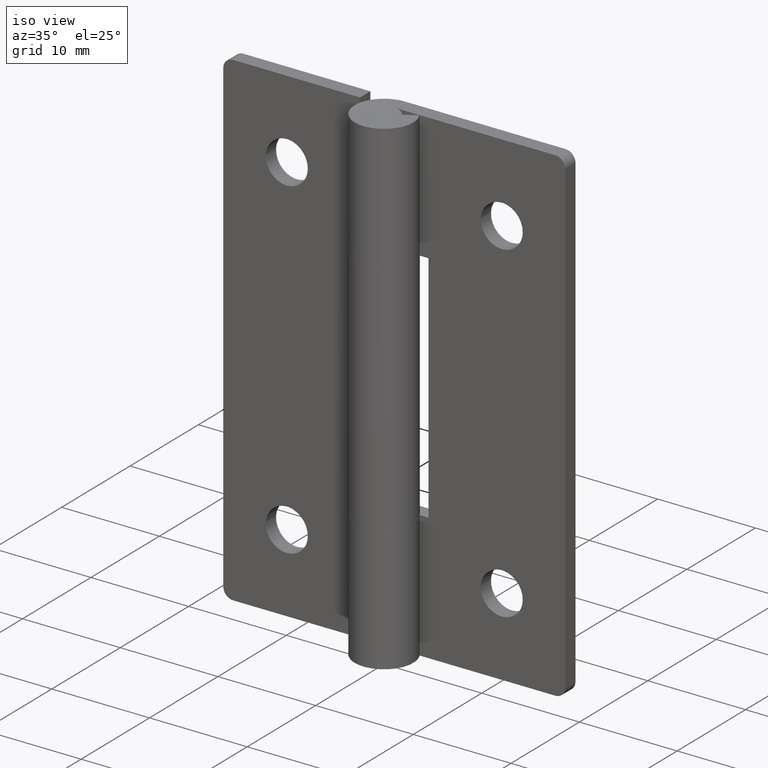
[diagram: clean part render]
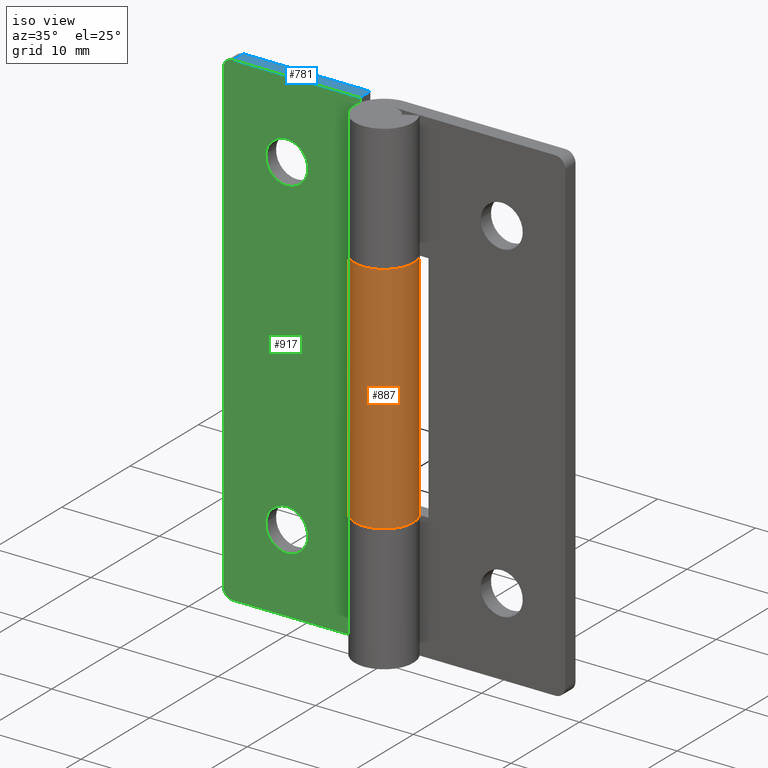
[diagram: same view with three faces highlighted in distinct colors, each labeled with its STEP entity id]
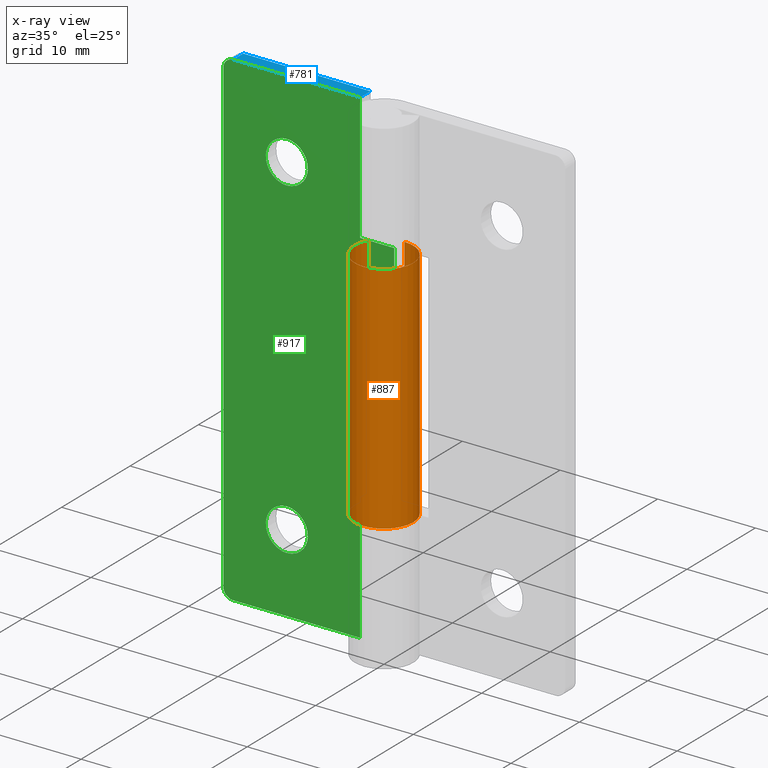
[diagram: x-ray of the same camera — body ghosted, the three highlighted faces saturated]
A machine part, iso view with three faces highlighted in distinct colors.
The next image is the same camera in x-ray (body ghosted, the three faces saturated) — at least one of them is partly hidden behind the body in this view.
Their STEP definitions:

[orange] entity #887 — the highlighted face is a freeform B-spline surface patch.
#535=CARTESIAN_POINT('',(-2.626309197333780,1.450000000000000,13.0));
#536=VERTEX_POINT('',#535);
#537=CARTESIAN_POINT('',(0.0,3.0,13.0));
#538=VERTEX_POINT('',#537);
#539=CARTESIAN_POINT('',(-2.626309197333780,1.450000000000000,13.0));
#540=CARTESIAN_POINT('',(-3.733431584505770,-0.555272902071675,12.999999999999998));
#541=CARTESIAN_POINT('',(-2.090650590886091,-2.151552952364324,13.0));
#542=CARTESIAN_POINT('',(-0.447869597266413,-3.747833002656972,12.999999999999998));
#543=CARTESIAN_POINT('',(1.524795068197689,-2.583602136552764,13.0));
#544=CARTESIAN_POINT('',(3.497459733661792,-1.419371270448555,12.999999999999998));
#545=CARTESIAN_POINT('',(2.894028888043301,0.790314364775722,13.0));
#546=CARTESIAN_POINT('',(2.290598042424809,3.000000000000000,12.999999999999998));
#547=CARTESIAN_POINT('',(0.0,3.0,13.0));
#555=(BOUNDED_CURVE()B_SPLINE_CURVE(2,(#539,#540,#541,#542,#543,#544,#545,#546,#547),.UNSPECIFIED.,.F.,.U.)B_SPLINE_CURVE_WITH_KNOTS((3,2,2,2,3),(0.0,0.250000000000000,0.500000000000000,0.750000000000000,1.0),.UNSPECIFIED.)CURVE()GEOMETRIC_REPRESENTATION_ITEM()RATIONAL_B_SPLINE_CURVE((1.0,0.794807562115481,1.0,0.794807562115481,1.0,0.794807562115481,1.0,0.794807562115481,1.0))REPRESENTATION_ITEM(''));
#556=EDGE_CURVE('',#536,#538,#555,.T.);
#643=CARTESIAN_POINT('',(0.0,3.0,37.000008000000001));
#644=VERTEX_POINT('',#643);
#685=CARTESIAN_POINT('',(-2.626309197333780,1.450000000000000,37.000008000000051));
#686=VERTEX_POINT('',#685);
#692=CARTESIAN_POINT('',(0.0,3.0,37.000008000000051));
#693=CARTESIAN_POINT('',(2.290598042424808,3.0,37.000008000000044));
#694=CARTESIAN_POINT('',(2.894028888043301,0.790314364775724,37.000008000000051));
#695=CARTESIAN_POINT('',(3.497459733661794,-1.419371270448550,37.000008000000044));
#696=CARTESIAN_POINT('',(1.524795068197693,-2.583602136552761,37.000008000000051));
#697=CARTESIAN_POINT('',(-0.447869597266408,-3.747833002656974,37.000008000000044));
#698=CARTESIAN_POINT('',(-2.090650590886088,-2.151552952364328,37.000008000000051));
#699=CARTESIAN_POINT('',(-3.733431584505768,-0.555272902071681,37.000008000000044));
#700=CARTESIAN_POINT('',(-2.626309197333781,1.449999999999996,37.000008000000051));
#708=(BOUNDED_CURVE()B_SPLINE_CURVE(2,(#692,#693,#694,#695,#696,#697,#698,#699,#700),.UNSPECIFIED.,.F.,.U.)B_SPLINE_CURVE_WITH_KNOTS((3,2,2,2,3),(0.0,0.250000000000000,0.500000000000000,0.750000000000000,1.0),.UNSPECIFIED.)CURVE()GEOMETRIC_REPRESENTATION_ITEM()RATIONAL_B_SPLINE_CURVE((1.0,0.794807562115481,1.0,0.794807562115481,1.0,0.794807562115481,1.0,0.794807562115481,1.0))REPRESENTATION_ITEM(''));
#709=EDGE_CURVE('',#644,#686,#708,.T.);
#846=CARTESIAN_POINT('',(-2.626309197333780,1.450000000000000,37.000008000000051));
#847=CARTESIAN_POINT('',(-2.626309197333780,1.450000000000000,13.0));
#848=QUASI_UNIFORM_CURVE('',1,(#846,#847),.UNSPECIFIED.,.F.,.U.);
#849=EDGE_CURVE('',#686,#536,#848,.T.);
#855=CARTESIAN_POINT('',(-2.584887481324576,1.522615088882112,37.600008200000062));
#856=CARTESIAN_POINT('',(-2.584887481324576,1.522615088882112,12.384999795000001));
#857=CARTESIAN_POINT('',(-4.454017153952614,-1.650537421576552,37.600008200000048));
#858=CARTESIAN_POINT('',(-4.454017153952614,-1.650537421576552,12.384999794999995));
#859=CARTESIAN_POINT('',(-0.968449136630486,-2.839384840024272,37.600008200000062));
#860=CARTESIAN_POINT('',(-0.968449136630486,-2.839384840024272,12.384999795000001));
#861=CARTESIAN_POINT('',(2.517118880691642,-4.028232258471992,37.600008200000048));
#862=CARTESIAN_POINT('',(2.517118880691642,-4.028232258471992,12.384999794999995));
#863=CARTESIAN_POINT('',(2.976562347997527,-0.374268070349911,37.600008200000062));
#864=CARTESIAN_POINT('',(2.976562347997527,-0.374268070349911,12.384999795000001));
#865=CARTESIAN_POINT('',(3.436005815303412,3.279696117772171,37.600008200000048));
#866=CARTESIAN_POINT('',(3.436005815303412,3.279696117772171,12.384999794999995));
#867=CARTESIAN_POINT('',(-0.235377287183536,2.990752001199384,37.600008200000062));
#868=CARTESIAN_POINT('',(-0.235377287183536,2.990752001199384,12.384999795000001));
#876=(BOUNDED_SURFACE()B_SPLINE_SURFACE(1,2,((#855,#857,#859,#861,#863,#865,#867),(#856,#858,#860,#862,#864,#866,#868)),.UNSPECIFIED.,.F.,.F.,.U.)B_SPLINE_SURFACE_WITH_KNOTS((2,2),(3,2,2,3),(0.0,25.215008405000059),(0.0,5.702297214197750,11.404594428395500,17.106891642593251),.UNSPECIFIED.)GEOMETRIC_REPRESENTATION_ITEM()RATIONAL_B_SPLINE_SURFACE(((1.0,0.631578351302498,1.0,0.631578351302498,1.0,0.631578351302498,1.0),(1.0,0.631578351302498,1.0,0.631578351302498,1.0,0.631578351302498,1.0)))REPRESENTATION_ITEM('')SURFACE());
#877=ORIENTED_EDGE('',*,*,#556,.T.);
#878=CARTESIAN_POINT('',(0.0,3.0,37.000008000000001));
#879=CARTESIAN_POINT('',(0.0,3.0,13.0));
#880=QUASI_UNIFORM_CURVE('',1,(#878,#879),.UNSPECIFIED.,.F.,.U.);
#881=EDGE_CURVE('',#644,#538,#880,.T.);
#882=ORIENTED_EDGE('',*,*,#881,.F.);
#883=ORIENTED_EDGE('',*,*,#709,.T.);
#884=ORIENTED_EDGE('',*,*,#849,.T.);
#885=EDGE_LOOP('',(#877,#882,#883,#884));
#886=FACE_OUTER_BOUND('',#885,.T.);
#887=ADVANCED_FACE('',(#886),#876,.T.);

[blue] entity #781 — the highlighted face is a freeform B-spline surface patch.
#422=CARTESIAN_POINT('',(-16.500000000000000,1.500000000000000,50.000008000000001));
#423=VERTEX_POINT('',#422);
#439=CARTESIAN_POINT('',(-16.500000000000000,3.0,50.000008000000001));
#440=VERTEX_POINT('',#439);
#441=CARTESIAN_POINT('',(-16.500000000000000,3.0,50.000008000000001));
#442=CARTESIAN_POINT('',(-16.500000000000000,1.500000000000000,50.000008000000001));
#443=QUASI_UNIFORM_CURVE('',1,(#441,#442),.UNSPECIFIED.,.F.,.U.);
#444=EDGE_CURVE('',#440,#423,#443,.T.);
#720=CARTESIAN_POINT('',(-3.500000000000000,3.0,50.000008000000001));
#721=VERTEX_POINT('',#720);
#727=CARTESIAN_POINT('',(-3.500000000000000,1.499999999999946,50.000008000000001));
#728=VERTEX_POINT('',#727);
#729=CARTESIAN_POINT('',(-3.500000000000000,1.499999999999946,50.000008000000001));
#730=CARTESIAN_POINT('',(-3.500000000000000,3.0,50.000008000000001));
#731=QUASI_UNIFORM_CURVE('',1,(#729,#730),.UNSPECIFIED.,.F.,.U.);
#732=EDGE_CURVE('',#728,#721,#731,.T.);
#762=CARTESIAN_POINT('',(-17.149349974803481,1.425075002907234,50.000008000000001));
#763=CARTESIAN_POINT('',(-2.850649676509351,1.425075002907234,50.000008000000001));
#764=CARTESIAN_POINT('',(-17.149349974803481,3.074925037325847,50.000008000000001));
#765=CARTESIAN_POINT('',(-2.850649676509351,3.074925037325847,50.000008000000001));
#766=B_SPLINE_SURFACE_WITH_KNOTS('',1,1,((#762,#764),(#763,#765)),.UNSPECIFIED.,.F.,.F.,.U.,(2,2),(2,2),(0.0,14.298700298294129),(0.041708334948495,0.958291687403247),.UNSPECIFIED.);
#767=CARTESIAN_POINT('',(-16.500000000000000,3.0,50.000008000000001));
#768=CARTESIAN_POINT('',(-3.500000000000000,3.0,50.000008000000001));
#769=QUASI_UNIFORM_CURVE('',1,(#767,#768),.UNSPECIFIED.,.F.,.U.);
#770=EDGE_CURVE('',#440,#721,#769,.T.);
#771=ORIENTED_EDGE('',*,*,#770,.F.);
#772=ORIENTED_EDGE('',*,*,#444,.T.);
#773=CARTESIAN_POINT('',(-3.500000000000000,1.499999999999946,50.000008000000001));
#774=CARTESIAN_POINT('',(-16.500000000000000,1.500000000000000,50.000008000000001));
#775=QUASI_UNIFORM_CURVE('',1,(#773,#774),.UNSPECIFIED.,.F.,.U.);
#776=EDGE_CURVE('',#728,#423,#775,.T.);
#777=ORIENTED_EDGE('',*,*,#776,.F.);
#778=ORIENTED_EDGE('',*,*,#732,.T.);
#779=EDGE_LOOP('',(#771,#772,#777,#778));
#780=FACE_OUTER_BOUND('',#779,.T.);
#781=ADVANCED_FACE('',(#780),#766,.T.);

[green] entity #917 — the highlighted face is a freeform B-spline surface patch.
#62=CARTESIAN_POINT('',(-11.0,1.499999999999946,44.150008000000000));
#63=VERTEX_POINT('',#62);
#64=CARTESIAN_POINT('',(-13.143372267519061,1.499999999999946,42.168695055905957));
#65=VERTEX_POINT('',#64);
#66=CARTESIAN_POINT('',(-11.0,1.499999999999946,44.150008000000000));
#67=CARTESIAN_POINT('',(-12.987439556895691,1.499999999999946,44.150008000000000));
#68=CARTESIAN_POINT('',(-13.143372267519057,1.499999999999946,42.168695055905964));
#76=(BOUNDED_CURVE()B_SPLINE_CURVE(2,(#66,#67,#68),.UNSPECIFIED.,.F.,.U.)B_SPLINE_CURVE_WITH_KNOTS((3,3),(0.0,0.236331300618196),.UNSPECIFIED.)CURVE()GEOMETRIC_REPRESENTATION_ITEM()RATIONAL_B_SPLINE_CURVE((1.0,0.723120658622267,0.969723356141407))REPRESENTATION_ITEM(''));
#77=EDGE_CURVE('',#63,#65,#76,.T.);
#118=CARTESIAN_POINT('',(-8.856627732480945,1.499999999999946,41.831320944094053));
#119=VERTEX_POINT('',#118);
#125=CARTESIAN_POINT('',(-8.856627732480945,1.499999999999946,41.831320944094053));
#126=CARTESIAN_POINT('',(-8.850000000000000,1.499999999999946,41.915534269841999));
#127=CARTESIAN_POINT('',(-8.850000000000000,1.499999999999946,42.000008000000001));
#128=CARTESIAN_POINT('',(-8.850000000000000,1.499999999999946,44.150008000000000));
#129=CARTESIAN_POINT('',(-11.0,1.499999999999946,44.150008000000000));
#137=(BOUNDED_CURVE()B_SPLINE_CURVE(2,(#125,#126,#127,#128,#129),.UNSPECIFIED.,.F.,.U.)B_SPLINE_CURVE_WITH_KNOTS((3,2,3),(0.736331300618196,0.750000000000000,1.0),.UNSPECIFIED.)CURVE()GEOMETRIC_REPRESENTATION_ITEM()RATIONAL_B_SPLINE_CURVE((0.969723356141407,0.983986122564280,1.0,0.707106781186547,1.0))REPRESENTATION_ITEM(''));
#138=EDGE_CURVE('',#119,#63,#137,.T.);
#161=CARTESIAN_POINT('',(-11.0,1.499999999999946,39.850008000000003));
#162=VERTEX_POINT('',#161);
#163=CARTESIAN_POINT('',(-13.143372267519057,1.499999999999946,42.168695055905964));
#164=CARTESIAN_POINT('',(-13.149999999999997,1.499999999999946,42.084481730158004));
#165=CARTESIAN_POINT('',(-13.150000000000000,1.499999999999946,42.000008000000001));
#166=CARTESIAN_POINT('',(-13.149999999999999,1.499999999999946,39.850008000000010));
#167=CARTESIAN_POINT('',(-11.0,1.499999999999946,39.850008000000003));
#175=(BOUNDED_CURVE()B_SPLINE_CURVE(2,(#163,#164,#165,#166,#167),.UNSPECIFIED.,.F.,.U.)B_SPLINE_CURVE_WITH_KNOTS((3,2,3),(0.236331300618196,0.250000000000000,0.500000000000000),.UNSPECIFIED.)CURVE()GEOMETRIC_REPRESENTATION_ITEM()RATIONAL_B_SPLINE_CURVE((0.969723356141407,0.983986122564280,1.0,0.707106781186547,1.0))REPRESENTATION_ITEM(''));
#176=EDGE_CURVE('',#65,#162,#175,.T.);
#178=CARTESIAN_POINT('',(-11.0,1.499999999999946,39.850008000000003));
#179=CARTESIAN_POINT('',(-9.012560443104313,1.499999999999946,39.850008000000003));
#180=CARTESIAN_POINT('',(-8.856627732480945,1.499999999999946,41.831320944094053));
#188=(BOUNDED_CURVE()B_SPLINE_CURVE(2,(#178,#179,#180),.UNSPECIFIED.,.F.,.U.)B_SPLINE_CURVE_WITH_KNOTS((3,3),(0.500000000000000,0.736331300618196),.UNSPECIFIED.)CURVE()GEOMETRIC_REPRESENTATION_ITEM()RATIONAL_B_SPLINE_CURVE((1.0,0.723120658622268,0.969723356141406))REPRESENTATION_ITEM(''));
#189=EDGE_CURVE('',#162,#119,#188,.T.);
#244=CARTESIAN_POINT('',(-11.0,1.499999999999946,10.150000000000000));
#245=VERTEX_POINT('',#244);
#246=CARTESIAN_POINT('',(-13.143372267519061,1.499999999999946,8.168687055905956));
#247=VERTEX_POINT('',#246);
#248=CARTESIAN_POINT('',(-11.0,1.499999999999946,10.150000000000000));
#249=CARTESIAN_POINT('',(-12.987439556895696,1.499999999999946,10.149999999999999));
#250=CARTESIAN_POINT('',(-13.143372267519057,1.499999999999946,8.168687055905956));
#258=(BOUNDED_CURVE()B_SPLINE_CURVE(2,(#248,#249,#250),.UNSPECIFIED.,.F.,.U.)B_SPLINE_CURVE_WITH_KNOTS((3,3),(0.0,0.236331300618196),.UNSPECIFIED.)CURVE()GEOMETRIC_REPRESENTATION_ITEM()RATIONAL_B_SPLINE_CURVE((1.0,0.723120658622267,0.969723356141408))REPRESENTATION_ITEM(''));
#259=EDGE_CURVE('',#245,#247,#258,.T.);
#300=CARTESIAN_POINT('',(-8.856627732480945,1.499999999999946,7.831312944094043));
#301=VERTEX_POINT('',#300);
#307=CARTESIAN_POINT('',(-8.856627732480945,1.499999999999946,7.831312944094043));
#308=CARTESIAN_POINT('',(-8.850000000000000,1.499999999999947,7.915526269841998));
#309=CARTESIAN_POINT('',(-8.850000000000000,1.499999999999946,8.0));
#310=CARTESIAN_POINT('',(-8.850000000000000,1.499999999999946,10.149999999999999));
#311=CARTESIAN_POINT('',(-11.0,1.499999999999946,10.150000000000000));
#319=(BOUNDED_CURVE()B_SPLINE_CURVE(2,(#307,#308,#309,#310,#311),.UNSPECIFIED.,.F.,.U.)B_SPLINE_CURVE_WITH_KNOTS((3,2,3),(0.736331300618197,0.750000000000000,1.0),.UNSPECIFIED.)CURVE()GEOMETRIC_REPRESENTATION_ITEM()RATIONAL_B_SPLINE_CURVE((0.969723356141408,0.983986122564281,1.0,0.707106781186547,1.0))REPRESENTATION_ITEM(''));
#320=EDGE_CURVE('',#301,#245,#319,.T.);
#343=CARTESIAN_POINT('',(-11.0,1.499999999999946,5.850000000000001));
#344=VERTEX_POINT('',#343);
#345=CARTESIAN_POINT('',(-13.143372267519052,1.499999999999946,8.168687055905956));
#346=CARTESIAN_POINT('',(-13.150000000000004,1.499999999999947,8.084473730158003));
#347=CARTESIAN_POINT('',(-13.150000000000000,1.499999999999946,8.0));
#348=CARTESIAN_POINT('',(-13.149999999999999,1.499999999999946,5.850000000000001));
#349=CARTESIAN_POINT('',(-11.0,1.499999999999946,5.850000000000001));
#357=(BOUNDED_CURVE()B_SPLINE_CURVE(2,(#345,#346,#347,#348,#349),.UNSPECIFIED.,.F.,.U.)B_SPLINE_CURVE_WITH_KNOTS((3,2,3),(0.236331300618196,0.250000000000000,0.500000000000000),.UNSPECIFIED.)CURVE()GEOMETRIC_REPRESENTATION_ITEM()RATIONAL_B_SPLINE_CURVE((0.969723356141408,0.983986122564280,1.0,0.707106781186547,1.0))REPRESENTATION_ITEM(''));
#358=EDGE_CURVE('',#247,#344,#357,.T.);
#360=CARTESIAN_POINT('',(-11.0,1.499999999999946,5.850000000000001));
#361=CARTESIAN_POINT('',(-9.012560443104313,1.499999999999946,5.850000000000000));
#362=CARTESIAN_POINT('',(-8.856627732480945,1.499999999999946,7.831312944094043));
#370=(BOUNDED_CURVE()B_SPLINE_CURVE(2,(#360,#361,#362),.UNSPECIFIED.,.F.,.U.)B_SPLINE_CURVE_WITH_KNOTS((3,3),(0.500000000000000,0.736331300618196),.UNSPECIFIED.)CURVE()GEOMETRIC_REPRESENTATION_ITEM()RATIONAL_B_SPLINE_CURVE((1.0,0.723120658622268,0.969723356141406))REPRESENTATION_ITEM(''));
#371=EDGE_CURVE('',#344,#301,#370,.T.);
#422=CARTESIAN_POINT('',(-16.500000000000000,1.500000000000000,50.000008000000001));
#423=VERTEX_POINT('',#422);
#424=CARTESIAN_POINT('',(-17.500000000000000,1.500000000000000,49.000008000000001));
#425=VERTEX_POINT('',#424);
#426=CARTESIAN_POINT('',(-16.500000000000000,1.500000000000000,50.000008000000001));
#427=CARTESIAN_POINT('',(-17.499999999999996,1.500000000000000,50.000008000000001));
#428=CARTESIAN_POINT('',(-17.500000000000000,1.500000000000000,49.000008000000001));
#436=(BOUNDED_CURVE()B_SPLINE_CURVE(2,(#426,#427,#428),.UNSPECIFIED.,.F.,.U.)CURVE()GEOMETRIC_REPRESENTATION_ITEM()QUASI_UNIFORM_CURVE()RATIONAL_B_SPLINE_CURVE((1.0,0.707106781186548,1.0))REPRESENTATION_ITEM(''));
#437=EDGE_CURVE('',#423,#425,#436,.T.);
#483=CARTESIAN_POINT('',(-17.500000000000000,1.500000000000000,1.0));
#484=VERTEX_POINT('',#483);
#485=CARTESIAN_POINT('',(-16.500000000000000,1.500000000000000,0.0));
#486=VERTEX_POINT('',#485);
#487=CARTESIAN_POINT('',(-17.500000000000000,1.500000000000000,1.0));
#488=CARTESIAN_POINT('',(-17.499999999999996,1.500000000000000,0.0));
#489=CARTESIAN_POINT('',(-16.500000000000000,1.500000000000000,0.0));
#497=(BOUNDED_CURVE()B_SPLINE_CURVE(2,(#487,#488,#489),.UNSPECIFIED.,.F.,.U.)CURVE()GEOMETRIC_REPRESENTATION_ITEM()QUASI_UNIFORM_CURVE()RATIONAL_B_SPLINE_CURVE((1.0,0.707106781186548,1.0))REPRESENTATION_ITEM(''));
#498=EDGE_CURVE('',#484,#486,#497,.T.);
#565=CARTESIAN_POINT('',(9.184352E-017,1.500000000000000,13.0));
#566=VERTEX_POINT('',#565);
#586=CARTESIAN_POINT('',(-3.500000000000000,1.499999999999946,13.0));
#587=VERTEX_POINT('',#586);
#588=CARTESIAN_POINT('',(-3.500000000000000,1.499999999999946,13.0));
#589=CARTESIAN_POINT('',(9.184352E-017,1.500000000000000,13.0));
#590=QUASI_UNIFORM_CURVE('',1,(#588,#589),.UNSPECIFIED.,.F.,.U.);
#591=EDGE_CURVE('',#587,#566,#590,.T.);
#613=CARTESIAN_POINT('',(-3.500000000000000,1.500000000000000,0.0));
#614=VERTEX_POINT('',#613);
#628=CARTESIAN_POINT('',(-3.500000000000000,1.500000000000000,0.0));
#629=CARTESIAN_POINT('',(-3.500000000000000,1.499999999999946,13.0));
#630=QUASI_UNIFORM_CURVE('',1,(#628,#629),.UNSPECIFIED.,.F.,.U.);
#631=EDGE_CURVE('',#614,#587,#630,.T.);
#650=CARTESIAN_POINT('',(-3.500000000000000,1.499999999999946,37.000008000000001));
#651=VERTEX_POINT('',#650);
#657=CARTESIAN_POINT('',(9.184352E-017,1.500000000000000,37.000008000000051));
#658=VERTEX_POINT('',#657);
#659=CARTESIAN_POINT('',(9.184352E-017,1.500000000000000,37.000008000000051));
#660=CARTESIAN_POINT('',(-3.500000000000000,1.499999999999946,37.000008000000001));
#661=QUASI_UNIFORM_CURVE('',1,(#659,#660),.UNSPECIFIED.,.F.,.U.);
#662=EDGE_CURVE('',#658,#651,#661,.T.);
#727=CARTESIAN_POINT('',(-3.500000000000000,1.499999999999946,50.000008000000001));
#728=VERTEX_POINT('',#727);
#734=CARTESIAN_POINT('',(-3.500000000000000,1.499999999999946,37.000008000000001));
#735=CARTESIAN_POINT('',(-3.500000000000000,1.499999999999946,50.000008000000001));
#736=QUASI_UNIFORM_CURVE('',1,(#734,#735),.UNSPECIFIED.,.F.,.U.);
#737=EDGE_CURVE('',#651,#728,#736,.T.);
#753=CARTESIAN_POINT('',(-17.500000000000000,1.500000000000000,49.000008000000001));
#754=CARTESIAN_POINT('',(-17.500000000000000,1.500000000000000,1.0));
#755=QUASI_UNIFORM_CURVE('',1,(#753,#754),.UNSPECIFIED.,.F.,.U.);
#756=EDGE_CURVE('',#425,#484,#755,.T.);
#773=CARTESIAN_POINT('',(-3.500000000000000,1.499999999999946,50.000008000000001));
#774=CARTESIAN_POINT('',(-16.500000000000000,1.500000000000000,50.000008000000001));
#775=QUASI_UNIFORM_CURVE('',1,(#773,#774),.UNSPECIFIED.,.F.,.U.);
#776=EDGE_CURVE('',#728,#423,#775,.T.);
#787=CARTESIAN_POINT('',(-3.500000000000000,1.500000000000000,0.0));
#788=CARTESIAN_POINT('',(-16.500000000000000,1.500000000000000,0.0));
#789=QUASI_UNIFORM_CURVE('',1,(#787,#788),.UNSPECIFIED.,.F.,.U.);
#790=EDGE_CURVE('',#614,#486,#789,.T.);
#831=CARTESIAN_POINT('',(9.184352E-017,1.500000000000000,37.000008000000051));
#832=CARTESIAN_POINT('',(9.184352E-017,1.500000000000000,13.0));
#833=QUASI_UNIFORM_CURVE('',1,(#831,#832),.UNSPECIFIED.,.F.,.U.);
#834=EDGE_CURVE('',#658,#566,#833,.T.);
#888=CARTESIAN_POINT('',(-18.374124966081599,1.500000000000000,52.497508302690292));
#889=CARTESIAN_POINT('',(-18.374124966081599,1.500000000000000,-2.497501643795003));
#890=CARTESIAN_POINT('',(0.874125435468182,1.500000000000000,52.497508302690292));
#891=CARTESIAN_POINT('',(0.874125435468182,1.500000000000000,-2.497501643795003));
#892=B_SPLINE_SURFACE_WITH_KNOTS('',1,1,((#888,#890),(#889,#891)),.UNSPECIFIED.,.F.,.F.,.U.,(2,2),(2,2),(0.0,54.995009946485297),(0.0,19.248250401549790),.UNSPECIFIED.);
#893=ORIENTED_EDGE('',*,*,#756,.T.);
#894=ORIENTED_EDGE('',*,*,#498,.T.);
#895=ORIENTED_EDGE('',*,*,#790,.F.);
#896=ORIENTED_EDGE('',*,*,#631,.T.);
#897=ORIENTED_EDGE('',*,*,#591,.T.);
#898=ORIENTED_EDGE('',*,*,#834,.F.);
#899=ORIENTED_EDGE('',*,*,#662,.T.);
#900=ORIENTED_EDGE('',*,*,#737,.T.);
#901=ORIENTED_EDGE('',*,*,#776,.T.);
#902=ORIENTED_EDGE('',*,*,#437,.T.);
#903=EDGE_LOOP('',(#893,#894,#895,#896,#897,#898,#899,#900,#901,#902));
#904=FACE_OUTER_BOUND('',#903,.T.);
#905=ORIENTED_EDGE('',*,*,#371,.F.);
#906=ORIENTED_EDGE('',*,*,#358,.F.);
#907=ORIENTED_EDGE('',*,*,#259,.F.);
#908=ORIENTED_EDGE('',*,*,#320,.F.);
#909=EDGE_LOOP('',(#905,#906,#907,#908));
#910=FACE_BOUND('',#909,.T.);
#911=ORIENTED_EDGE('',*,*,#189,.F.);
#912=ORIENTED_EDGE('',*,*,#176,.F.);
#913=ORIENTED_EDGE('',*,*,#77,.F.);
#914=ORIENTED_EDGE('',*,*,#138,.F.);
#915=EDGE_LOOP('',(#911,#912,#913,#914));
#916=FACE_BOUND('',#915,.T.);
#917=ADVANCED_FACE('',(#904,#910,#916),#892,.T.);